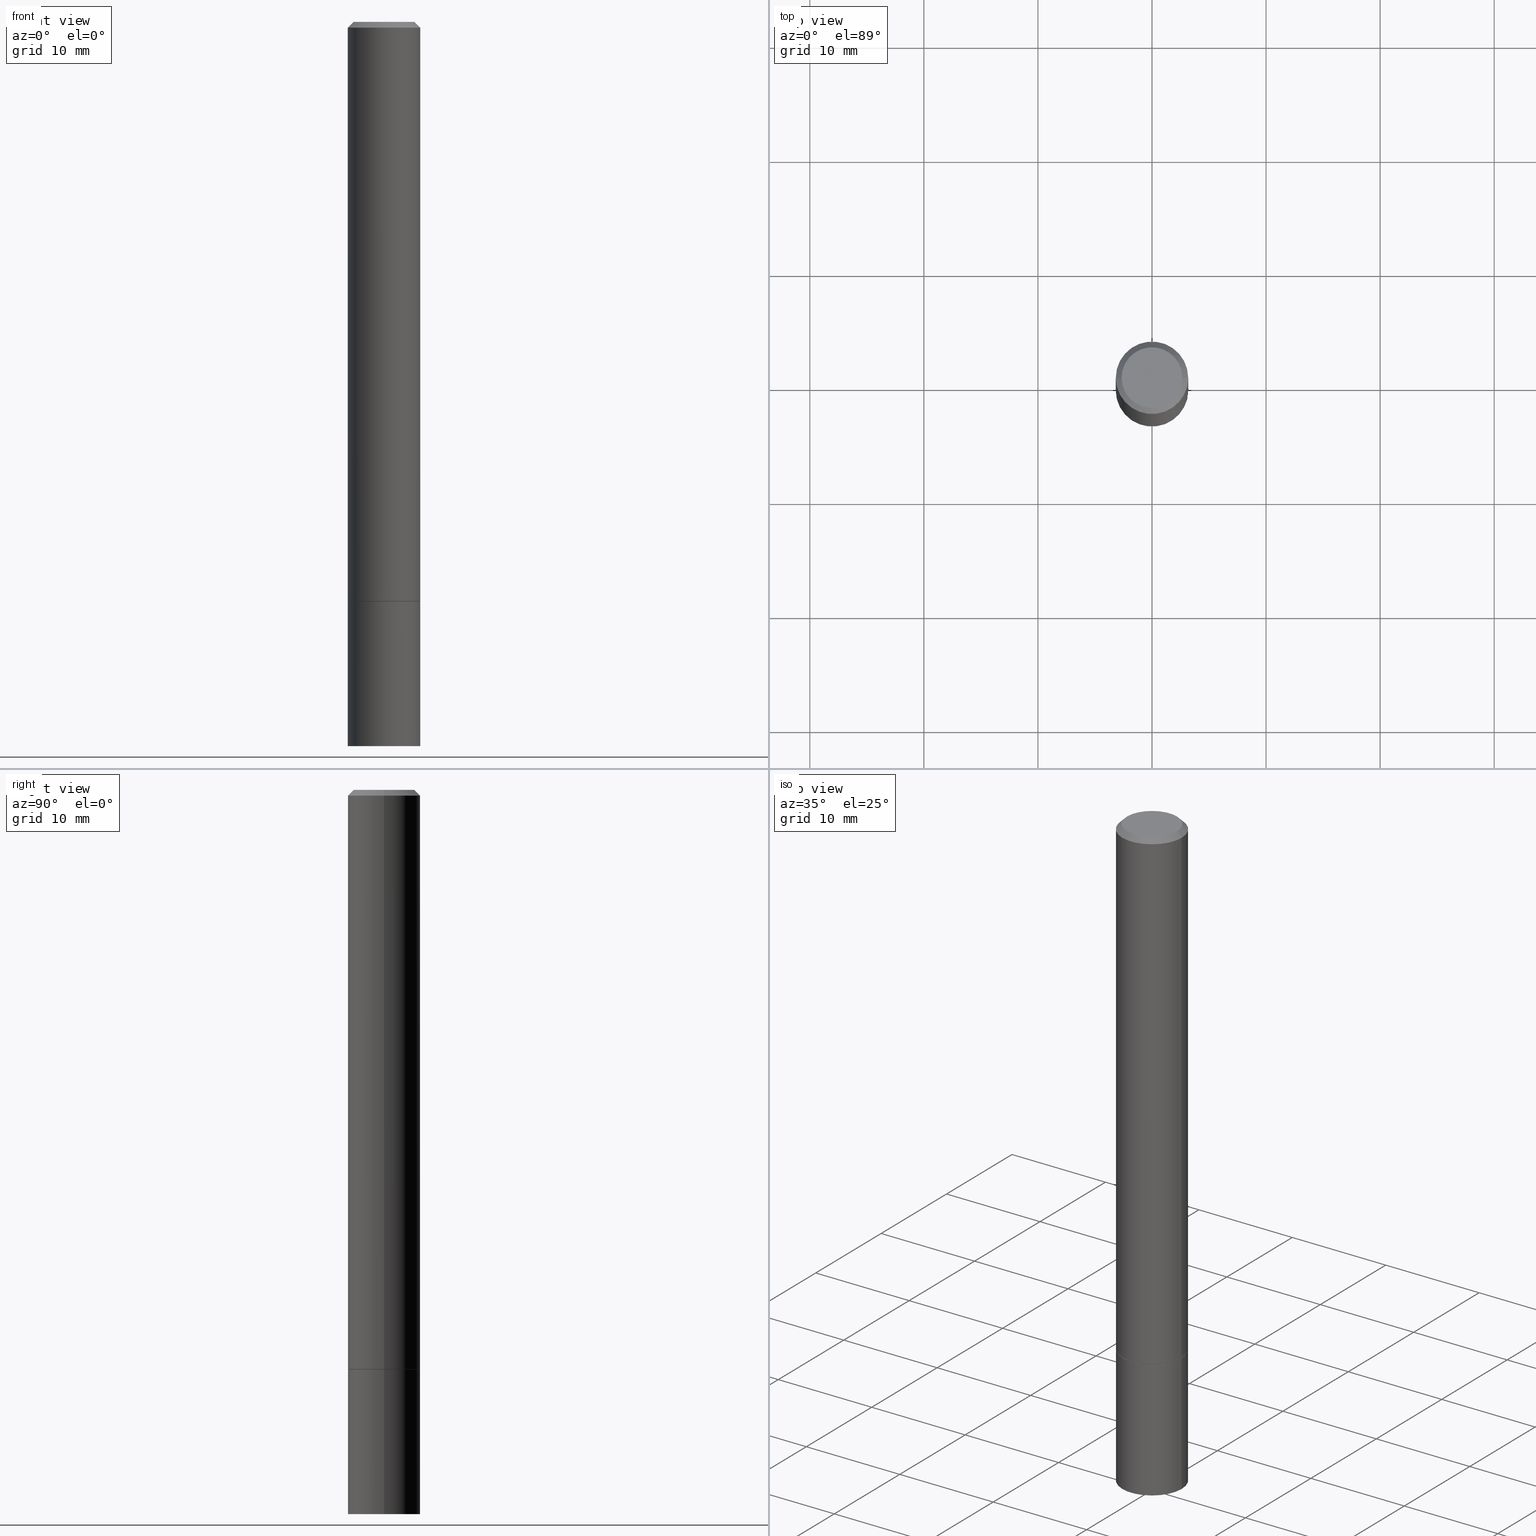
[diagram: canonical four-view strip — front | top / right | iso, engineering-drawing reading convention]
A machine part, canonical four-view strip (front | top / right | iso — engineering-drawing reading convention). The complete STEP part file that produces these views, byte-faithful:
ISO-10303-21;
HEADER;
FILE_DESCRIPTION (( 'STEP AP203' ),
    '1' );
FILE_NAME ('37011.STEP',
    '2024-02-27T20:06:37',
    ( '' ),
    ( '' ),
    'SwSTEP 2.0',
    'SolidWorks 2023',
    '' );
FILE_SCHEMA (( 'CONFIG_CONTROL_DESIGN' ));
ENDSEC;

DATA;
#1 = ADVANCED_FACE ( 'NONE', ( #328 ), #240, .T. ) ;
#2 = LINE ( 'NONE', #174, #333 ) ;
#3 = ORIENTED_EDGE ( 'NONE', *, *, #343, .T. ) ;
#4 = DIRECTION ( 'NONE',  ( 2.445468806185136597E-29, -3.491481338843145583E-15, -1.000000000000000000 ) ) ;
#5 = CC_DESIGN_DATE_AND_TIME_ASSIGNMENT ( #362, #83, ( #74 ) ) ;
#6 = DIRECTION ( 'NONE',  ( 1.000000000000000000, -6.982962677686266711E-15, 0.000000000000000000 ) ) ;
#7 = DIRECTION ( 'NONE',  ( -2.445468806185136597E-29, 3.491481338843145583E-15, 1.000000000000000000 ) ) ;
#8 = DIRECTION ( 'NONE',  ( 1.000000000000000000, -6.982962677686265922E-15, 4.876176775795935793E-29 ) ) ;
#9 = ORIENTED_EDGE ( 'NONE', *, *, #71, .F. ) ;
#10 = CIRCLE ( 'NONE', #334, 0.1049999999999997324 ) ;
#11 = LINE ( 'NONE', #97, #87 ) ;
#12 = VERTEX_POINT ( 'NONE', #248 ) ;
#13 = ADVANCED_FACE ( 'NONE', ( #321 ), #133, .T. ) ;
#14 = CARTESIAN_POINT ( 'NONE',  ( 0.1249999999999997224, -9.273918764983025741E-16, -0.02000000000000003511 ) ) ;
#15 = DIRECTION ( 'NONE',  ( 2.438088387897960049E-29, -3.491481338843145188E-15, -1.000000000000000000 ) ) ;
#16 = VERTEX_POINT ( 'NONE', #189 ) ;
#17 = AXIS2_PLACEMENT_3D ( 'NONE', #111, #34, #117 ) ;
#18 = CIRCLE ( 'NONE', #28, 0.1250000000000000000 ) ;
#19 = PERSON_AND_ORGANIZATION_ROLE ( 'classification_officer' ) ;
#20 = ORIENTED_EDGE ( 'NONE', *, *, #363, .T. ) ;
#21 = DIMENSIONAL_EXPONENTS ( 1.000000000000000000, 0.000000000000000000, 0.000000000000000000, 0.000000000000000000, 0.000000000000000000, 0.000000000000000000, 0.000000000000000000 ) ;
#22 = PERSON_AND_ORGANIZATION ( #118, #101 ) ;
#23 = ORIENTED_EDGE ( 'NONE', *, *, #268, .T. ) ;
#24 = PERSON_AND_ORGANIZATION_ROLE ( 'creator' ) ;
#25 = DIRECTION ( 'NONE',  ( 1.000000000000000000, -6.982962677686262766E-15, 0.000000000000000000 ) ) ;
#26 = COORDINATED_UNIVERSAL_TIME_OFFSET ( 5, 0, .BEHIND. ) ;
#27 = CIRCLE ( 'NONE', #169, 0.1239999999999999991 ) ;
#28 = AXIS2_PLACEMENT_3D ( 'NONE', #291, #316, #159 ) ;
#29 = APPROVAL_ROLE ( '' ) ;
#30 = CC_DESIGN_PERSON_AND_ORGANIZATION_ASSIGNMENT ( #52, #24, ( #57 ) ) ;
#31 = CARTESIAN_POINT ( 'NONE',  ( 0.1239999999999999991, -7.848850049719387701E-15, -2.000000000000000000 ) ) ;
#32 = CARTESIAN_POINT ( 'NONE',  ( 0.000000000000000000, 0.000000000000000000, 0.000000000000000000 ) ) ;
#33 = DIRECTION ( 'NONE',  ( -2.445468806185136597E-29, 3.491481338843145583E-15, 1.000000000000000000 ) ) ;
#34 = DIRECTION ( 'NONE',  ( -2.445468806185136597E-29, 3.491481338843145583E-15, 1.000000000000000000 ) ) ;
#35 = PRODUCT_DEFINITION_FORMATION_WITH_SPECIFIED_SOURCE ( 'ANY', '', #58, .NOT_KNOWN. ) ;
#36 = DIRECTION ( 'NONE',  ( 1.000000000000000000, -6.982962677686262766E-15, 0.000000000000000000 ) ) ;
#37 = ORIENTED_EDGE ( 'NONE', *, *, #113, .T. ) ;
#38 = FACE_OUTER_BOUND ( 'NONE', #356, .T. ) ;
#39 = PLANE ( 'NONE',  #115 ) ;
#40 =( GEOMETRIC_REPRESENTATION_CONTEXT ( 3 ) GLOBAL_UNCERTAINTY_ASSIGNED_CONTEXT ( ( #66 ) ) GLOBAL_UNIT_ASSIGNED_CONTEXT ( ( #122, #351, #151 ) ) REPRESENTATION_CONTEXT ( 'NONE', 'WORKASPACE' ) );
#41 = DIRECTION ( 'NONE',  ( -2.438088387897960049E-29, 3.491481338843145188E-15, 1.000000000000000000 ) ) ;
#42 = DIRECTION ( 'NONE',  ( -2.445468806185136597E-29, 3.491481338843145583E-15, 1.000000000000000000 ) ) ;
#43 = DIRECTION ( 'NONE',  ( -2.445468806185136597E-29, 3.491481338843145583E-15, 1.000000000000000000 ) ) ;
#44 = ORIENTED_EDGE ( 'NONE', *, *, #187, .T. ) ;
#45 = DATE_TIME_ROLE ( 'creation_date' ) ;
#46 = ORIENTED_EDGE ( 'NONE', *, *, #339, .F. ) ;
#47 = APPROVAL_PERSON_ORGANIZATION ( #22, #161, #29 ) ;
#48 = APPROVAL_STATUS ( 'not_yet_approved' ) ;
#49 = CC_DESIGN_DATE_AND_TIME_ASSIGNMENT ( #329, #45, ( #57 ) ) ;
#50 = EDGE_LOOP ( 'NONE', ( #88, #192 ) ) ;
#51 = CARTESIAN_POINT ( 'NONE',  ( -0.1239999999999999991, -6.101889685343766941E-15, -2.000000000000000000 ) ) ;
#52 = PERSON_AND_ORGANIZATION ( #118, #101 ) ;
#53 = PLANE ( 'NONE',  #243 ) ;
#54 = ADVANCED_FACE ( 'NONE', ( #270 ), #345, .F. ) ;
#55 = APPROVAL_ROLE ( '' ) ;
#56 = VECTOR ( 'NONE', #145, 39.37007874015748854 ) ;
#57 = PRODUCT_DEFINITION ( 'UNKNOWN', '', #35, #332 ) ;
#58 = PRODUCT ( '37011', '37011', '', ( #110 ) ) ;
#59 = CARTESIAN_POINT ( 'NONE',  ( 4.890937612370273194E-29, -6.982962677686291165E-15, -2.000000000000000000 ) ) ;
#60 = AXIS2_PLACEMENT_3D ( 'NONE', #331, #304, #116 ) ;
#61 = EDGE_CURVE ( 'NONE', #128, #16, #172, .T. ) ;
#62 = ADVANCED_FACE ( 'NONE', ( #106 ), #258, .T. ) ;
#63 = DIRECTION ( 'NONE',  ( 2.438088387897960049E-29, -3.491481338843145188E-15, -1.000000000000000000 ) ) ;
#64 = VERTEX_POINT ( 'NONE', #340 ) ;
#65 = CARTESIAN_POINT ( 'NONE',  ( 4.890937612370281041E-31, -6.982962677686302702E-17, -0.02000000000000003511 ) ) ;
#66 = UNCERTAINTY_MEASURE_WITH_UNIT (LENGTH_MEASURE( 1.000000000000000082E-05 ), #122, 'distance_accuracy_value', 'NONE');
#67 = CARTESIAN_POINT ( 'NONE',  ( 6.113672015462842613E-29, -8.728703347107864943E-15, -2.500000000000000000 ) ) ;
#68 = CIRCLE ( 'NONE', #266, 0.1049999999999997324 ) ;
#69 = EDGE_LOOP ( 'NONE', ( #348, #20 ) ) ;
#70 = DIRECTION ( 'NONE',  ( -2.445468806185136597E-29, 3.491481338843145583E-15, 1.000000000000000000 ) ) ;
#71 = EDGE_CURVE ( 'NONE', #16, #272, #82, .T. ) ;
#72 = CARTESIAN_POINT ( 'NONE',  ( 4.890937612370273194E-29, -6.982962677686291165E-15, -2.000000000000000000 ) ) ;
#73 = EDGE_LOOP ( 'NONE', ( #242, #81 ) ) ;
#74 = SECURITY_CLASSIFICATION ( '', '', #199 ) ;
#75 = PLANE ( 'NONE',  #317 ) ;
#76 = ORIENTED_EDGE ( 'NONE', *, *, #263, .T. ) ;
#77 = APPROVAL_DATE_TIME ( #322, #161 ) ;
#78 = ORIENTED_EDGE ( 'NONE', *, *, #121, .T. ) ;
#79 = VERTEX_POINT ( 'NONE', #310 ) ;
#80 = CALENDAR_DATE ( 2024, 27, 2 ) ;
#81 = ORIENTED_EDGE ( 'NONE', *, *, #347, .F. ) ;
#82 = LINE ( 'NONE', #227, #93 ) ;
#83 = DATE_TIME_ROLE ( 'classification_date' ) ;
#84 = MANIFOLD_SOLID_BREP ( 'Body-Move/Copy2[1]', #191 ) ;
#85 = DIRECTION ( 'NONE',  ( -2.445468806185136597E-29, 3.491481338843145583E-15, 1.000000000000000000 ) ) ;
#86 = CARTESIAN_POINT ( 'NONE',  ( -0.1250000000000000000, -6.967654592696952427E-15, -2.000000000000000000 ) ) ;
#87 = VECTOR ( 'NONE', #239, 39.37007874015748143 ) ;
#88 = ORIENTED_EDGE ( 'NONE', *, *, #121, .F. ) ;
#89 = DIRECTION ( 'NONE',  ( 2.445468806185136597E-29, -3.491481338843145583E-15, -1.000000000000000000 ) ) ;
#90 = ADVANCED_FACE ( 'NONE', ( #167 ), #311, .T. ) ;
#91 = MANIFOLD_SOLID_BREP ( 'Body-Move/Copy2[2]', #327 ) ;
#92 = FACE_OUTER_BOUND ( 'NONE', #126, .T. ) ;
#93 = VECTOR ( 'NONE', #361, 39.37007874015748143 ) ;
#94 = AXIS2_PLACEMENT_3D ( 'NONE', #326, #141, #278 ) ;
#95 = DIRECTION ( 'NONE',  ( 1.000000000000000000, -6.982962677686266711E-15, 4.876176775795935793E-29 ) ) ;
#96 = DIRECTION ( 'NONE',  ( -2.445468806185136597E-29, 3.491481338843145583E-15, 1.000000000000000000 ) ) ;
#97 = CARTESIAN_POINT ( 'NONE',  ( -0.1249999999999998612, 8.881784197001242463E-16, -6.148668862818625221E-30 ) ) ;
#98 = ADVANCED_BREP_SHAPE_REPRESENTATION ( '37011', ( #84, #91, #94 ), #40 ) ;
#99 = ORIENTED_EDGE ( 'NONE', *, *, #347, .T. ) ;
#100 = VECTOR ( 'NONE', #235, 39.37007874015748854 ) ;
#101 = ORGANIZATION ( 'UNSPECIFIED', 'UNSPECIFIED', '' ) ;
#102 = CARTESIAN_POINT ( 'NONE',  ( 7.332110811570560522E-16, 0.1049999999999997324, -3.666055405785293573E-16 ) ) ;
#103 = APPROVAL_DATE_TIME ( #280, #195 ) ;
#104 = ORIENTED_EDGE ( 'NONE', *, *, #71, .T. ) ;
#105 = APPROVAL_STATUS ( 'not_yet_approved' ) ;
#106 = FACE_OUTER_BOUND ( 'NONE', #160, .T. ) ;
#107 = VECTOR ( 'NONE', #277, 39.37007874015748143 ) ;
#108 = LOCAL_TIME ( 15, 6, 37.00000000000000000, #305 ) ;
#109 = APPLICATION_CONTEXT ( 'configuration controlled 3d designs of mechanical parts and assemblies' ) ;
#110 = MECHANICAL_CONTEXT ( 'NONE', #109, 'mechanical' ) ;
#111 = CARTESIAN_POINT ( 'NONE',  ( 0.000000000000000000, 0.000000000000000000, 0.000000000000000000 ) ) ;
#112 = CALENDAR_DATE ( 2024, 27, 2 ) ;
#113 = EDGE_CURVE ( 'NONE', #64, #79, #313, .T. ) ;
#114 = CONICAL_SURFACE ( 'NONE', #200, 0.1239999999999999991, 0.7853981633974141952 ) ;
#115 = AXIS2_PLACEMENT_3D ( 'NONE', #346, #41, #261 ) ;
#116 = DIRECTION ( 'NONE',  ( 1.000000000000000000, -6.982962677686262766E-15, 0.000000000000000000 ) ) ;
#117 = DIRECTION ( 'NONE',  ( 1.000000000000000000, -6.982962677686266711E-15, 4.876176775795935793E-29 ) ) ;
#118 = PERSON ( 'UNSPECIFIED', 'UNSPECIFIED', 'UNSPECIFIED', ('UNSPECIFIED'), ('UNSPECIFIED'), ('UNSPECIFIED') ) ;
#119 = DIRECTION ( 'NONE',  ( -1.000000000000000000, 6.982962677686266711E-15, 0.000000000000000000 ) ) ;
#120 = CARTESIAN_POINT ( 'NONE',  ( 4.890937612370281041E-31, -6.982962677686302702E-17, -0.02000000000000003511 ) ) ;
#121 = EDGE_CURVE ( 'NONE', #12, #274, #27, .T. ) ;
#122 =( CONVERSION_BASED_UNIT ( 'INCH', #288 ) LENGTH_UNIT ( ) NAMED_UNIT ( #21 ) );
#123 = VERTEX_POINT ( 'NONE', #86 ) ;
#124 = DIRECTION ( 'NONE',  ( -2.445468806185136597E-29, 3.491481338843145583E-15, 1.000000000000000000 ) ) ;
#125 = CC_DESIGN_APPROVAL ( #222, ( #74 ) ) ;
#126 = EDGE_LOOP ( 'NONE', ( #164, #286, #37, #292 ) ) ;
#127 = CARTESIAN_POINT ( 'NONE',  ( 4.890937612370273194E-29, -6.982962677686291165E-15, -2.000000000000000000 ) ) ;
#128 = VERTEX_POINT ( 'NONE', #284 ) ;
#129 = CARTESIAN_POINT ( 'NONE',  ( 0.000000000000000000, 0.000000000000000000, 0.000000000000000000 ) ) ;
#130 = DIRECTION ( 'NONE',  ( -1.000000000000000000, 6.982962677686265922E-15, -4.876176775795935793E-29 ) ) ;
#131 = DIRECTION ( 'NONE',  ( 1.000000000000000000, -6.982962677686270655E-15, 0.000000000000000000 ) ) ;
#132 = AXIS2_PLACEMENT_3D ( 'NONE', #323, #96, #275 ) ;
#133 = CYLINDRICAL_SURFACE ( 'NONE', #279, 0.1249999999999998612 ) ;
#134 = CIRCLE ( 'NONE', #230, 0.1250000000000000000 ) ;
#135 = EDGE_LOOP ( 'NONE', ( #208, #319, #302, #9 ) ) ;
#136 = PRODUCT_DEFINITION_SHAPE ( 'NONE', 'NONE',  #57 ) ;
#137 = VERTEX_POINT ( 'NONE', #147 ) ;
#138 = PERSON_AND_ORGANIZATION ( #118, #101 ) ;
#139 = DIRECTION ( 'NONE',  ( -1.000000000000000000, 6.982962677686266711E-15, 0.000000000000000000 ) ) ;
#140 = CC_DESIGN_SECURITY_CLASSIFICATION ( #74, ( #35 ) ) ;
#141 = DIRECTION ( 'NONE',  ( 0.000000000000000000, 0.000000000000000000, 1.000000000000000000 ) ) ;
#142 = DATE_AND_TIME ( #80, #108 ) ;
#143 = EDGE_CURVE ( 'NONE', #12, #16, #234, .T. ) ;
#144 = APPROVAL_PERSON_ORGANIZATION ( #357, #195, #55 ) ;
#145 = DIRECTION ( 'NONE',  ( 0.7071067811865232589, -2.468850131082003836E-15, 0.7071067811865715536 ) ) ;
#146 = DIRECTION ( 'NONE',  ( 1.000000000000000000, -6.982962677686265922E-15, 4.876176775795935793E-29 ) ) ;
#147 = CARTESIAN_POINT ( 'NONE',  ( 0.1049999999999997324, -8.238720831321557908E-16, 5.444276250344137453E-30 ) ) ;
#148 = AXIS2_PLACEMENT_3D ( 'NONE', #65, #4, #139 ) ;
#149 = DIRECTION ( 'NONE',  ( -1.000000000000000000, 6.982962677686265922E-15, -4.876176775795935793E-29 ) ) ;
#150 = VECTOR ( 'NONE', #182, 39.37007874015748143 ) ;
#151 =( NAMED_UNIT ( * ) SI_UNIT ( $, .STERADIAN. ) SOLID_ANGLE_UNIT ( ) );
#152 = ORIENTED_EDGE ( 'NONE', *, *, #61, .T. ) ;
#153 = DIRECTION ( 'NONE',  ( -2.445468806185136597E-29, 3.491481338843145583E-15, 1.000000000000000000 ) ) ;
#154 = CARTESIAN_POINT ( 'NONE',  ( 4.890937612370273194E-29, -6.982962677686291165E-15, -2.000000000000000000 ) ) ;
#155 = AXIS2_PLACEMENT_3D ( 'NONE', #173, #89, #119 ) ;
#156 = ORIENTED_EDGE ( 'NONE', *, *, #143, .F. ) ;
#157 = CYLINDRICAL_SURFACE ( 'NONE', #178, 0.1249999999999998612 ) ;
#158 = DIRECTION ( 'NONE',  ( 1.000000000000000000, -6.982962677686266711E-15, 4.876176775795935793E-29 ) ) ;
#159 = DIRECTION ( 'NONE',  ( 1.000000000000000000, -6.982962677686270655E-15, 0.000000000000000000 ) ) ;
#160 = EDGE_LOOP ( 'NONE', ( #289, #99, #318, #224 ) ) ;
#161 = APPROVAL ( #194, 'UNSPECIFIED' ) ;
#162 = ORIENTED_EDGE ( 'NONE', *, *, #283, .T. ) ;
#163 = CIRCLE ( 'NONE', #364, 0.1250000000000000000 ) ;
#164 = ORIENTED_EDGE ( 'NONE', *, *, #343, .F. ) ;
#165 = EDGE_CURVE ( 'NONE', #272, #79, #257, .T. ) ;
#166 = CALENDAR_DATE ( 2024, 27, 2 ) ;
#167 = FACE_OUTER_BOUND ( 'NONE', #175, .T. ) ;
#168 = PERSON_AND_ORGANIZATION_ROLE ( 'creator' ) ;
#169 = AXIS2_PLACEMENT_3D ( 'NONE', #338, #282, #25 ) ;
#170 = PERSON_AND_ORGANIZATION ( #118, #101 ) ;
#171 = DIRECTION ( 'NONE',  ( -2.445468806185136597E-29, 3.491481338843145583E-15, 1.000000000000000000 ) ) ;
#172 = CIRCLE ( 'NONE', #132, 0.1250000000000000000 ) ;
#173 = CARTESIAN_POINT ( 'NONE',  ( 4.890937612370281041E-31, -6.982962677686302702E-17, -0.02000000000000003511 ) ) ;
#174 = CARTESIAN_POINT ( 'NONE',  ( -0.1250000000000000000, 8.881784197001252323E-16, -6.148668862818632227E-30 ) ) ;
#175 = EDGE_LOOP ( 'NONE', ( #246, #3, #297, #212 ) ) ;
#176 = FACE_OUTER_BOUND ( 'NONE', #301, .T. ) ;
#177 =( LENGTH_UNIT ( ) NAMED_UNIT ( * ) SI_UNIT ( $, .METRE. ) );
#178 = AXIS2_PLACEMENT_3D ( 'NONE', #129, #269, #95 ) ;
#179 = APPLICATION_PROTOCOL_DEFINITION ( 'international standard', 'config_control_design', 1994, #109 ) ;
#180 = EDGE_CURVE ( 'NONE', #184, #123, #2, .T. ) ;
#181 = CC_DESIGN_PERSON_AND_ORGANIZATION_ASSIGNMENT ( #170, #303, ( #58 ) ) ;
#182 = DIRECTION ( 'NONE',  ( 0.7071067811865467956, -7.319954787623254468E-15, -0.7071067811865482389 ) ) ;
#183 = LOCAL_TIME ( 15, 6, 37.00000000000000000, #221 ) ;
#184 = VERTEX_POINT ( 'NONE', #314 ) ;
#185 = CARTESIAN_POINT ( 'NONE',  ( 8.728703347108321496E-16, 0.1249999999999930195, -2.000000000000000444 ) ) ;
#186 = VERTEX_POINT ( 'NONE', #256 ) ;
#187 = EDGE_CURVE ( 'NONE', #274, #128, #209, .T. ) ;
#188 = SHAPE_DEFINITION_REPRESENTATION ( #136, #98 ) ;
#189 = CARTESIAN_POINT ( 'NONE',  ( 0.1250000000000000000, -7.852341531058230708E-15, -1.998999999999999888 ) ) ;
#190 = COORDINATED_UNIVERSAL_TIME_OFFSET ( 5, 0, .BEHIND. ) ;
#191 = CLOSED_SHELL ( 'NONE', ( #1, #229, #354, #62 ) ) ;
#192 = ORIENTED_EDGE ( 'NONE', *, *, #283, .F. ) ;
#193 = LOCAL_TIME ( 15, 6, 37.00000000000000000, #197 ) ;
#194 = APPROVAL_STATUS ( 'not_yet_approved' ) ;
#195 = APPROVAL ( #105, 'UNSPECIFIED' ) ;
#196 = EDGE_LOOP ( 'NONE', ( #206, #315, #237, #262 ) ) ;
#197 = COORDINATED_UNIVERSAL_TIME_OFFSET ( 5, 0, .BEHIND. ) ;
#198 = FACE_OUTER_BOUND ( 'NONE', #73, .T. ) ;
#199 = SECURITY_CLASSIFICATION_LEVEL ( 'unclassified' ) ;
#200 = AXIS2_PLACEMENT_3D ( 'NONE', #59, #203, #287 ) ;
#201 = AXIS2_PLACEMENT_3D ( 'NONE', #241, #153, #36 ) ;
#202 = PRODUCT_RELATED_PRODUCT_CATEGORY ( 'detail', '', ( #58 ) ) ;
#203 = DIRECTION ( 'NONE',  ( -2.445468806185136597E-29, 3.491481338843145583E-15, 1.000000000000000000 ) ) ;
#204 = CARTESIAN_POINT ( 'NONE',  ( -0.1249999999999997224, 8.030407079339183643E-16, -0.02000000000000003511 ) ) ;
#205 = CC_DESIGN_PERSON_AND_ORGANIZATION_ASSIGNMENT ( #138, #19, ( #74 ) ) ;
#206 = ORIENTED_EDGE ( 'NONE', *, *, #335, .T. ) ;
#207 = DIRECTION ( 'NONE',  ( -2.445468806185136877E-29, 3.491481338843145188E-15, 1.000000000000000000 ) ) ;
#208 = ORIENTED_EDGE ( 'NONE', *, *, #238, .T. ) ;
#209 = LINE ( 'NONE', #51, #100 ) ;
#210 = ADVANCED_FACE ( 'NONE', ( #92 ), #306, .T. ) ;
#211 = FACE_OUTER_BOUND ( 'NONE', #50, .T. ) ;
#212 = ORIENTED_EDGE ( 'NONE', *, *, #113, .F. ) ;
#213 = DIRECTION ( 'NONE',  ( -1.000000000000000000, 6.982962677686265922E-15, -4.876176775795935793E-29 ) ) ;
#214 = ORIENTED_EDGE ( 'NONE', *, *, #61, .F. ) ;
#215 = LINE ( 'NONE', #265, #150 ) ;
#216 = CARTESIAN_POINT ( 'NONE',  ( 0.000000000000000000, 0.000000000000000000, 0.000000000000000000 ) ) ;
#217 = ADVANCED_FACE ( 'NONE', ( #176 ), #114, .T. ) ;
#218 = PERSON_AND_ORGANIZATION ( #118, #101 ) ;
#219 = VERTEX_POINT ( 'NONE', #254 ) ;
#220 = ORIENTED_EDGE ( 'NONE', *, *, #238, .F. ) ;
#221 = COORDINATED_UNIVERSAL_TIME_OFFSET ( 5, 0, .BEHIND. ) ;
#222 = APPROVAL ( #48, 'UNSPECIFIED' ) ;
#223 = AXIS2_PLACEMENT_3D ( 'NONE', #216, #42, #158 ) ;
#224 = ORIENTED_EDGE ( 'NONE', *, *, #363, .F. ) ;
#225 = AXIS2_PLACEMENT_3D ( 'NONE', #154, #7, #131 ) ;
#226 = APPLICATION_PROTOCOL_DEFINITION ( 'international standard', 'config_control_design', 1994, #281 ) ;
#227 = CARTESIAN_POINT ( 'NONE',  ( 0.1249999999999998612, -8.728703347107823527E-16, 6.095220969744912735E-30 ) ) ;
#228 = APPROVAL_DATE_TIME ( #142, #222 ) ;
#229 = ADVANCED_FACE ( 'NONE', ( #198 ), #53, .T. ) ;
#230 = AXIS2_PLACEMENT_3D ( 'NONE', #67, #124, #271 ) ;
#231 = CARTESIAN_POINT ( 'NONE',  ( 0.1250000000000000000, -8.728703347107833388E-16, 6.095220969744919741E-30 ) ) ;
#232 = DIRECTION ( 'NONE',  ( -2.445468806185136597E-29, 3.491481338843145583E-15, 1.000000000000000000 ) ) ;
#233 = CONICAL_SURFACE ( 'NONE', #201, 0.1239999999999999991, 0.7853981633974141952 ) ;
#234 = LINE ( 'NONE', #31, #56 ) ;
#235 = DIRECTION ( 'NONE',  ( -0.7071067811865232589, 7.493145998870265808E-15, 0.7071067811865715536 ) ) ;
#236 = FACE_OUTER_BOUND ( 'NONE', #267, .T. ) ;
#237 = ORIENTED_EDGE ( 'NONE', *, *, #336, .F. ) ;
#238 = EDGE_CURVE ( 'NONE', #16, #128, #349, .T. ) ;
#239 = DIRECTION ( 'NONE',  ( -2.445468806185136877E-29, 3.491481338843145188E-15, 1.000000000000000000 ) ) ;
#240 = CYLINDRICAL_SURFACE ( 'NONE', #223, 0.1250000000000000000 ) ;
#241 = CARTESIAN_POINT ( 'NONE',  ( 4.890937612370273194E-29, -6.982962677686291165E-15, -2.000000000000000000 ) ) ;
#242 = ORIENTED_EDGE ( 'NONE', *, *, #335, .F. ) ;
#243 = AXIS2_PLACEMENT_3D ( 'NONE', #250, #63, #149 ) ;
#244 = APPROVAL_PERSON_ORGANIZATION ( #249, #222, #298 ) ;
#245 = CARTESIAN_POINT ( 'NONE',  ( 0.000000000000000000, 0.000000000000000000, 0.000000000000000000 ) ) ;
#246 = ORIENTED_EDGE ( 'NONE', *, *, #268, .F. ) ;
#247 = PERSON_AND_ORGANIZATION_ROLE ( 'design_supplier' ) ;
#248 = CARTESIAN_POINT ( 'NONE',  ( 0.1239999999999999991, -7.848850049719387701E-15, -2.000000000000000000 ) ) ;
#249 = PERSON_AND_ORGANIZATION ( #118, #101 ) ;
#250 = CARTESIAN_POINT ( 'NONE',  ( 8.728703347108443769E-16, 0.1249999999999912709, -2.500000000000000444 ) ) ;
#251 = LOCAL_TIME ( 15, 6, 37.00000000000000000, #26 ) ;
#252 = CALENDAR_DATE ( 2024, 27, 2 ) ;
#253 = EDGE_CURVE ( 'NONE', #79, #272, #360, .T. ) ;
#254 = CARTESIAN_POINT ( 'NONE',  ( 0.1250000000000000000, -7.855833012397075293E-15, -2.000000000000000000 ) ) ;
#255 = CARTESIAN_POINT ( 'NONE',  ( 0.000000000000000000, 0.000000000000000000, 0.000000000000000000 ) ) ;
#256 = CARTESIAN_POINT ( 'NONE',  ( 0.1250000000000000000, -9.601573681818648281E-15, -2.500000000000000000 ) ) ;
#257 = CIRCLE ( 'NONE', #307, 0.1249999999999997224 ) ;
#258 = CYLINDRICAL_SURFACE ( 'NONE', #17, 0.1250000000000000000 ) ;
#259 = EDGE_CURVE ( 'NONE', #186, #219, #337, .T. ) ;
#260 = CARTESIAN_POINT ( 'NONE',  ( -0.1239999999999999991, -6.096591230995545328E-15, -2.000000000000000000 ) ) ;
#261 = DIRECTION ( 'NONE',  ( 1.000000000000000000, -6.982962677686265922E-15, 4.876176775795935793E-29 ) ) ;
#262 = ORIENTED_EDGE ( 'NONE', *, *, #259, .F. ) ;
#263 = EDGE_CURVE ( 'NONE', #64, #137, #10, .T. ) ;
#264 = AXIS2_PLACEMENT_3D ( 'NONE', #102, #15, #130 ) ;
#265 = CARTESIAN_POINT ( 'NONE',  ( 0.1249999999999997224, -9.273918764983025741E-16, -0.02000000000000003511 ) ) ;
#266 = AXIS2_PLACEMENT_3D ( 'NONE', #255, #232, #8 ) ;
#267 = EDGE_LOOP ( 'NONE', ( #46, #152, #104, #344 ) ) ;
#268 = EDGE_CURVE ( 'NONE', #137, #64, #68, .T. ) ;
#269 = DIRECTION ( 'NONE',  ( -2.445468806185136597E-29, 3.491481338843145583E-15, 1.000000000000000000 ) ) ;
#270 = FACE_OUTER_BOUND ( 'NONE', #295, .T. ) ;
#271 = DIRECTION ( 'NONE',  ( 1.000000000000000000, -6.982962677686270655E-15, 0.000000000000000000 ) ) ;
#272 = VERTEX_POINT ( 'NONE', #14 ) ;
#273 = AXIS2_PLACEMENT_3D ( 'NONE', #120, #171, #366 ) ;
#274 = VERTEX_POINT ( 'NONE', #260 ) ;
#275 = DIRECTION ( 'NONE',  ( 1.000000000000000000, -6.982962677686262766E-15, 0.000000000000000000 ) ) ;
#276 = PERSON_AND_ORGANIZATION ( #118, #101 ) ;
#277 = DIRECTION ( 'NONE',  ( -0.7071067811865467956, 2.468850131082249172E-15, -0.7071067811865482389 ) ) ;
#278 = DIRECTION ( 'NONE',  ( 1.000000000000000000, 0.000000000000000000, 0.000000000000000000 ) ) ;
#279 = AXIS2_PLACEMENT_3D ( 'NONE', #245, #358, #353 ) ;
#280 = DATE_AND_TIME ( #355, #193 ) ;
#281 = APPLICATION_CONTEXT ( 'configuration controlled 3d designs of mechanical parts and assemblies' ) ;
#282 = DIRECTION ( 'NONE',  ( -2.445468806185136597E-29, 3.491481338843145583E-15, 1.000000000000000000 ) ) ;
#283 = EDGE_CURVE ( 'NONE', #274, #12, #294, .T. ) ;
#284 = CARTESIAN_POINT ( 'NONE',  ( -0.1250000000000000000, -2.636471991862026157E-15, -1.998999999999999888 ) ) ;
#285 = DIRECTION ( 'NONE',  ( -2.445468806185136877E-29, 3.491481338843145188E-15, 1.000000000000000000 ) ) ;
#286 = ORIENTED_EDGE ( 'NONE', *, *, #263, .F. ) ;
#287 = DIRECTION ( 'NONE',  ( 1.000000000000000000, -6.982962677686262766E-15, 0.000000000000000000 ) ) ;
#288 = LENGTH_MEASURE_WITH_UNIT ( LENGTH_MEASURE( 0.02539999999999999897 ), #177 );
#289 = ORIENTED_EDGE ( 'NONE', *, *, #180, .F. ) ;
#290 = DIRECTION ( 'NONE',  ( 1.000000000000000000, -6.982962677686262766E-15, 0.000000000000000000 ) ) ;
#291 = CARTESIAN_POINT ( 'NONE',  ( 6.113672015462842613E-29, -8.728703347107864943E-15, -2.500000000000000000 ) ) ;
#292 = ORIENTED_EDGE ( 'NONE', *, *, #253, .T. ) ;
#293 = DIRECTION ( 'NONE',  ( 1.000000000000000000, -6.982962677686270655E-15, 0.000000000000000000 ) ) ;
#294 = CIRCLE ( 'NONE', #308, 0.1239999999999999991 ) ;
#295 = EDGE_LOOP ( 'NONE', ( #76, #23 ) ) ;
#296 = DIRECTION ( 'NONE',  ( 2.438088387897960049E-29, -3.491481338843145188E-15, -1.000000000000000000 ) ) ;
#297 = ORIENTED_EDGE ( 'NONE', *, *, #165, .T. ) ;
#298 = APPROVAL_ROLE ( '' ) ;
#299 = ORIENTED_EDGE ( 'NONE', *, *, #143, .T. ) ;
#300 = LOCAL_TIME ( 15, 6, 37.00000000000000000, #190 ) ;
#301 = EDGE_LOOP ( 'NONE', ( #325, #162, #299, #214 ) ) ;
#302 = ORIENTED_EDGE ( 'NONE', *, *, #165, .F. ) ;
#303 = PERSON_AND_ORGANIZATION_ROLE ( 'design_owner' ) ;
#304 = DIRECTION ( 'NONE',  ( -2.445468806185136597E-29, 3.491481338843145583E-15, 1.000000000000000000 ) ) ;
#305 = COORDINATED_UNIVERSAL_TIME_OFFSET ( 5, 0, .BEHIND. ) ;
#306 = CONICAL_SURFACE ( 'NONE', #148, 0.1249999999999997224, 0.7853981633974472798 ) ;
#307 = AXIS2_PLACEMENT_3D ( 'NONE', #341, #33, #6 ) ;
#308 = AXIS2_PLACEMENT_3D ( 'NONE', #72, #43, #290 ) ;
#309 = ADVANCED_FACE ( 'NONE', ( #211 ), #39, .F. ) ;
#310 = CARTESIAN_POINT ( 'NONE',  ( -0.1249999999999997224, 8.030407079339183643E-16, -0.02000000000000003511 ) ) ;
#311 = CONICAL_SURFACE ( 'NONE', #155, 0.1249999999999997224, 0.7853981633974472798 ) ;
#312 = CIRCLE ( 'NONE', #225, 0.1250000000000000000 ) ;
#313 = LINE ( 'NONE', #204, #107 ) ;
#314 = CARTESIAN_POINT ( 'NONE',  ( -0.1250000000000000000, -6.967654592696952427E-15, -2.500000000000000000 ) ) ;
#315 = ORIENTED_EDGE ( 'NONE', *, *, #180, .T. ) ;
#316 = DIRECTION ( 'NONE',  ( -2.445468806185136597E-29, 3.491481338843145583E-15, 1.000000000000000000 ) ) ;
#317 = AXIS2_PLACEMENT_3D ( 'NONE', #185, #296, #213 ) ;
#318 = ORIENTED_EDGE ( 'NONE', *, *, #259, .T. ) ;
#319 = ORIENTED_EDGE ( 'NONE', *, *, #339, .T. ) ;
#320 = FACE_OUTER_BOUND ( 'NONE', #69, .T. ) ;
#321 = FACE_OUTER_BOUND ( 'NONE', #135, .T. ) ;
#322 = DATE_AND_TIME ( #112, #251 ) ;
#323 = CARTESIAN_POINT ( 'NONE',  ( 4.888492143564087591E-29, -6.979471196347447369E-15, -1.998999999999999888 ) ) ;
#324 = ADVANCED_FACE ( 'NONE', ( #236 ), #157, .T. ) ;
#325 = ORIENTED_EDGE ( 'NONE', *, *, #187, .F. ) ;
#326 = CARTESIAN_POINT ( 'NONE',  ( 0.000000000000000000, 0.000000000000000000, 0.000000000000000000 ) ) ;
#327 = CLOSED_SHELL ( 'NONE', ( #330, #13, #90, #210, #324, #217, #309, #54 ) ) ;
#328 = FACE_OUTER_BOUND ( 'NONE', #196, .T. ) ;
#329 = DATE_AND_TIME ( #166, #300 ) ;
#330 = ADVANCED_FACE ( 'NONE', ( #38 ), #233, .T. ) ;
#331 = CARTESIAN_POINT ( 'NONE',  ( 4.888492143564087591E-29, -6.979471196347447369E-15, -1.998999999999999888 ) ) ;
#332 = DESIGN_CONTEXT ( 'detailed design', #281, 'design' ) ;
#333 = VECTOR ( 'NONE', #207, 39.37007874015748143 ) ;
#334 = AXIS2_PLACEMENT_3D ( 'NONE', #32, #85, #146 ) ;
#335 = EDGE_CURVE ( 'NONE', #186, #184, #18, .T. ) ;
#336 = EDGE_CURVE ( 'NONE', #219, #123, #312, .T. ) ;
#337 = LINE ( 'NONE', #231, #352 ) ;
#338 = CARTESIAN_POINT ( 'NONE',  ( 4.890937612370273194E-29, -6.982962677686291165E-15, -2.000000000000000000 ) ) ;
#339 = EDGE_CURVE ( 'NONE', #128, #79, #11, .T. ) ;
#340 = CARTESIAN_POINT ( 'NONE',  ( -0.1049999999999997324, 7.681258945454871096E-16, -5.249639473182153965E-30 ) ) ;
#341 = CARTESIAN_POINT ( 'NONE',  ( 4.890937612370281041E-31, -6.982962677686302702E-17, -0.02000000000000003511 ) ) ;
#342 = CC_DESIGN_APPROVAL ( #195, ( #35 ) ) ;
#343 = EDGE_CURVE ( 'NONE', #137, #272, #215, .T. ) ;
#344 = ORIENTED_EDGE ( 'NONE', *, *, #253, .F. ) ;
#345 = PLANE ( 'NONE',  #264 ) ;
#346 = CARTESIAN_POINT ( 'NONE',  ( 4.890937612370273194E-29, -6.982962677686291165E-15, -2.000000000000000000 ) ) ;
#347 = EDGE_CURVE ( 'NONE', #184, #186, #134, .T. ) ;
#348 = ORIENTED_EDGE ( 'NONE', *, *, #336, .T. ) ;
#349 = CIRCLE ( 'NONE', #60, 0.1250000000000000000 ) ;
#350 = CC_DESIGN_APPROVAL ( #161, ( #57 ) ) ;
#351 =( NAMED_UNIT ( * ) PLANE_ANGLE_UNIT ( ) SI_UNIT ( $, .RADIAN. ) );
#352 = VECTOR ( 'NONE', #285, 39.37007874015748143 ) ;
#353 = DIRECTION ( 'NONE',  ( 1.000000000000000000, -6.982962677686266711E-15, 4.876176775795935793E-29 ) ) ;
#354 = ADVANCED_FACE ( 'NONE', ( #320 ), #75, .F. ) ;
#355 = CALENDAR_DATE ( 2024, 27, 2 ) ;
#356 = EDGE_LOOP ( 'NONE', ( #78, #44, #220, #156 ) ) ;
#357 = PERSON_AND_ORGANIZATION ( #118, #101 ) ;
#358 = DIRECTION ( 'NONE',  ( -2.445468806185136597E-29, 3.491481338843145583E-15, 1.000000000000000000 ) ) ;
#359 = CC_DESIGN_PERSON_AND_ORGANIZATION_ASSIGNMENT ( #276, #168, ( #35 ) ) ;
#360 = CIRCLE ( 'NONE', #273, 0.1249999999999997224 ) ;
#361 = DIRECTION ( 'NONE',  ( -2.445468806185136877E-29, 3.491481338843145188E-15, 1.000000000000000000 ) ) ;
#362 = DATE_AND_TIME ( #252, #183 ) ;
#363 = EDGE_CURVE ( 'NONE', #123, #219, #163, .T. ) ;
#364 = AXIS2_PLACEMENT_3D ( 'NONE', #127, #70, #293 ) ;
#365 = CC_DESIGN_PERSON_AND_ORGANIZATION_ASSIGNMENT ( #218, #247, ( #35 ) ) ;
#366 = DIRECTION ( 'NONE',  ( 1.000000000000000000, -6.982962677686266711E-15, 0.000000000000000000 ) ) ;
ENDSEC;
END-ISO-10303-21;
